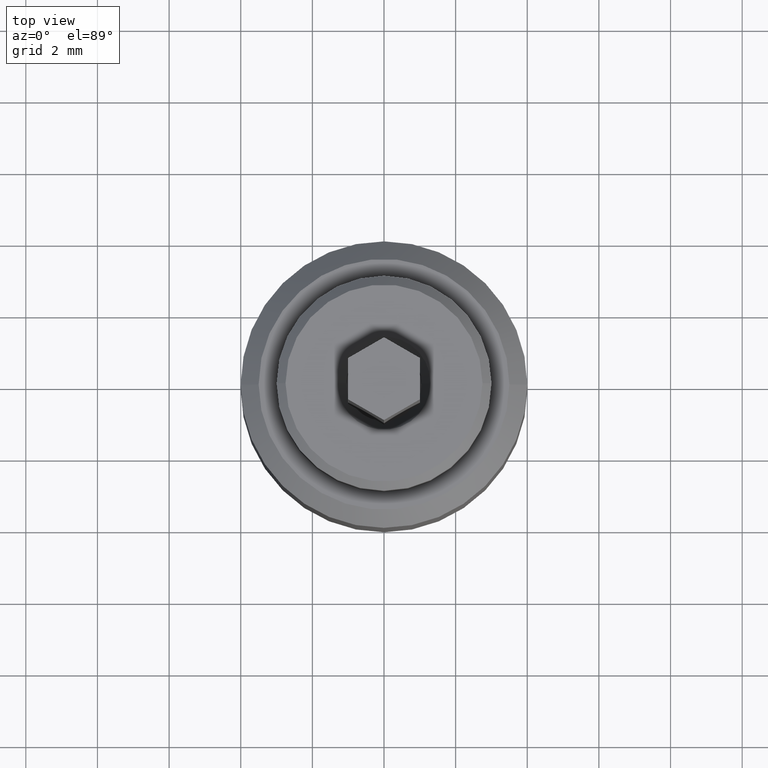
[diagram: clean part render]
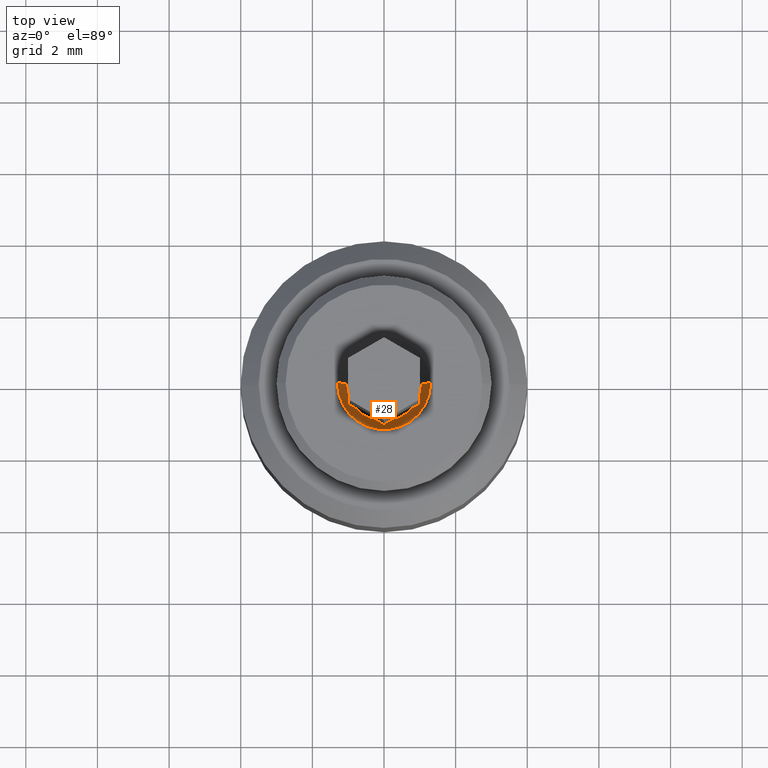
[diagram: same view with one face highlighted and labeled with its STEP entity id]
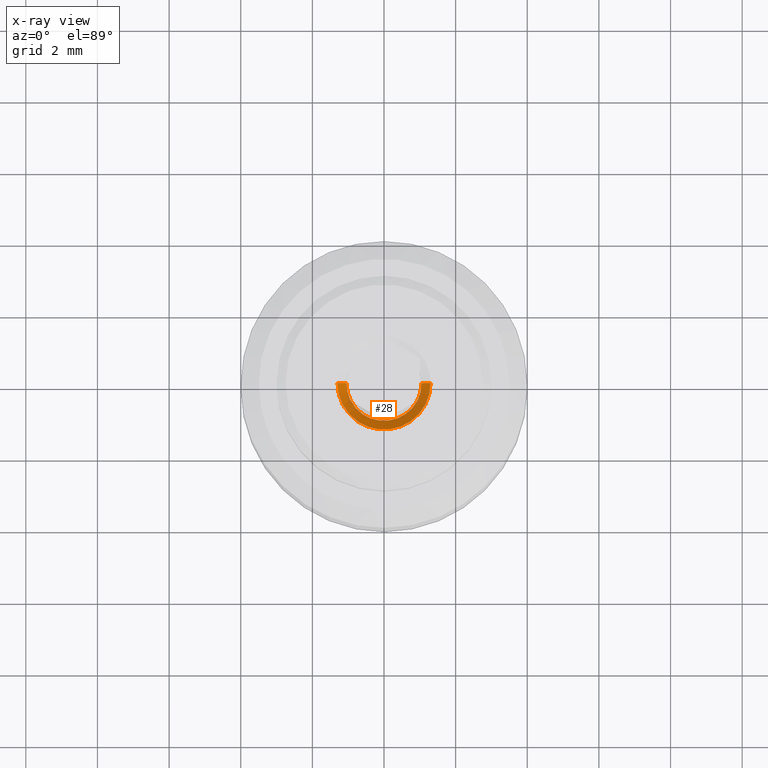
[diagram: x-ray of the same camera — body ghosted, the highlighted face saturated]
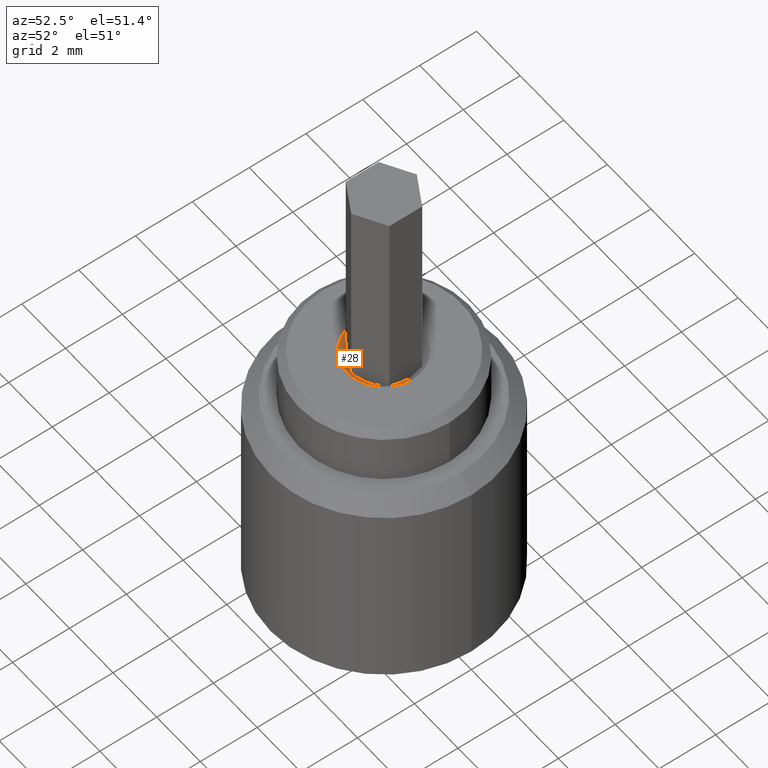
[diagram: same view with one face highlighted and labeled with its STEP entity id]
A machine part, top view. The second image highlights one B-rep face of the part: STEP entity #28.
The next image is the same camera in x-ray: the body ghosted, the highlighted face saturated — about 5% of this face is hidden behind the body in this view.
A second angle (auxiliary view) of the same face is appended — the face is thin or edge-on in the first view.
In plain terms, the highlighted conical surface has half-angle 45 deg.
Its self-contained STEP definition (entity closure, byte-faithful):
#28 = ADVANCED_FACE ( 'NONE', ( #878 ), #439, .F. ) ;
#42 = VECTOR ( 'NONE', #262, 999.9999999999998863 ) ;
#47 = DIRECTION ( 'NONE',  ( 1.000000000000000000, 0.000000000000000000, 0.000000000000000000 ) ) ;
#67 = ORIENTED_EDGE ( 'NONE', *, *, #472, .F. ) ;
#107 = ORIENTED_EDGE ( 'NONE', *, *, #124, .T. ) ;
#124 = EDGE_CURVE ( 'NONE', #173, #584, #792, .T. ) ;
#128 = ORIENTED_EDGE ( 'NONE', *, *, #717, .F. ) ;
#173 = VERTEX_POINT ( 'NONE', #261 ) ;
#224 = AXIS2_PLACEMENT_3D ( 'NONE', #619, #332, #480 ) ;
#250 = CARTESIAN_POINT ( 'NONE',  ( -1.300000000000006040, 1.592040838891566491E-16, 10.00000000000000000 ) ) ;
#261 = CARTESIAN_POINT ( 'NONE',  ( -1.050000000000000044, 1.285879139104720978E-16, 9.749999999999998224 ) ) ;
#262 = DIRECTION ( 'NONE',  ( 0.7071067811865531239, 0.000000000000000000, 0.7071067811865420216 ) ) ;
#277 = CARTESIAN_POINT ( 'NONE',  ( 0.000000000000000000, 0.000000000000000000, 9.749999999999998224 ) ) ;
#283 = DIRECTION ( 'NONE',  ( -0.7071067811865531239, 8.659560562355001884E-17, 0.7071067811865420216 ) ) ;
#332 = DIRECTION ( 'NONE',  ( 0.000000000000000000, 0.000000000000000000, 1.000000000000000000 ) ) ;
#337 = CARTESIAN_POINT ( 'NONE',  ( 1.050000000000000044, 0.000000000000000000, 9.749999999999998224 ) ) ;
#385 = ORIENTED_EDGE ( 'NONE', *, *, #672, .F. ) ;
#425 = CARTESIAN_POINT ( 'NONE',  ( 1.050000000000000044, 0.000000000000000000, 9.749999999999998224 ) ) ;
#439 = CONICAL_SURFACE ( 'NONE', #942, 1.050000000000000044, 0.7853981633974560506 ) ;
#458 = EDGE_LOOP ( 'NONE', ( #67, #107, #128, #385 ) ) ;
#472 = EDGE_CURVE ( 'NONE', #173, #777, #797, .T. ) ;
#480 = DIRECTION ( 'NONE',  ( 1.000000000000000000, 0.000000000000000000, 0.000000000000000000 ) ) ;
#494 = LINE ( 'NONE', #337, #42 ) ;
#496 = DIRECTION ( 'NONE',  ( 0.000000000000000000, 0.000000000000000000, 1.000000000000000000 ) ) ;
#509 = CARTESIAN_POINT ( 'NONE',  ( 1.300000000000006040, 0.000000000000000000, 10.00000000000000000 ) ) ;
#562 = CARTESIAN_POINT ( 'NONE',  ( 0.000000000000000000, 0.000000000000000000, 10.00000000000000000 ) ) ;
#584 = VERTEX_POINT ( 'NONE', #250 ) ;
#619 = CARTESIAN_POINT ( 'NONE',  ( 0.000000000000000000, 0.000000000000000000, 9.749999999999998224 ) ) ;
#646 = DIRECTION ( 'NONE',  ( 1.000000000000000000, 0.000000000000000000, 0.000000000000000000 ) ) ;
#672 = EDGE_CURVE ( 'NONE', #777, #916, #494, .T. ) ;
#717 = EDGE_CURVE ( 'NONE', #916, #584, #931, .T. ) ;
#777 = VERTEX_POINT ( 'NONE', #425 ) ;
#792 = LINE ( 'NONE', #963, #968 ) ;
#797 = CIRCLE ( 'NONE', #224, 1.050000000000000044 ) ;
#878 = FACE_OUTER_BOUND ( 'NONE', #458, .T. ) ;
#916 = VERTEX_POINT ( 'NONE', #509 ) ;
#931 = CIRCLE ( 'NONE', #961, 1.300000000000006040 ) ;
#942 = AXIS2_PLACEMENT_3D ( 'NONE', #277, #496, #47 ) ;
#956 = DIRECTION ( 'NONE',  ( -0.000000000000000000, -0.000000000000000000, -1.000000000000000000 ) ) ;
#961 = AXIS2_PLACEMENT_3D ( 'NONE', #562, #956, #646 ) ;
#963 = CARTESIAN_POINT ( 'NONE',  ( -1.050000000000000044, 1.285879139104720978E-16, 9.749999999999998224 ) ) ;
#968 = VECTOR ( 'NONE', #283, 999.9999999999998863 ) ;